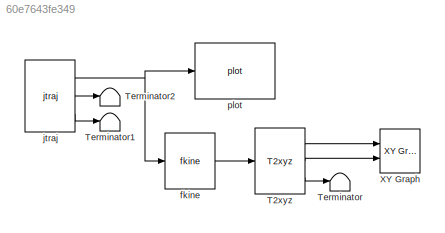
MODEL slx_60e7643fe349
KIND model
CONFIG AbsTol = auto
CONFIG FixedStep = auto
CONFIG InitFcn = if ~exist('p560')\n  mdl_puma560\nend
CONFIG MaxStep = auto
CONFIG MinStep = auto
CONFIG RelTol = 1e-3
CONFIG SampleTimeConstraint = Unconstrained
CONFIG Solver = ode45
CONFIG SolverMode = Auto
CONFIG SolverName = ode45
CONFIG StartTime = 0.0
CONFIG StopTime = 5
BLOCK [Reference] T2xyz  REF=roblocks/Toolbox/T2xyz  (lib defined in mdl_2a292b13c81b, mdl_69400f8cfe22, +12 more)
  Ports = [1, 3]
  SourceBlock = roblocks/Toolbox/T2xyz
BLOCK [Terminator] Terminator
BLOCK [Terminator] Terminator1
BLOCK [Terminator] Terminator2
BLOCK [Reference] XY Graph  REF=simulink/Sinks/XY Graph
  Ports = [2]
  SourceBlock = simulink/Sinks/XY Graph
  SourceType = XY scope.
  st = -1
  xmax = 1
  xmin = -1
  ymax = 1
  ymin = -1
BLOCK [Reference] fkine  REF=roblocks/Arm/fkine  (lib defined in mdl_2a292b13c81b, mdl_69400f8cfe22, +12 more)
  Ports = [1, 1]
  SourceBlock = roblocks/Arm/fkine
  robot = p560
BLOCK [Reference] jtraj  REF=roblocks/Toolbox/jtraj  (lib defined in mdl_2a292b13c81b, mdl_69400f8cfe22, +12 more)
  Ports = [0, 3]
  SourceBlock = roblocks/Toolbox/jtraj
  q0 = [0 0 0 0 0 0]
  qf = [pi/4 pi/2 -pi/2 0 0 0]
  tmax = 5
  ts = 0.02
BLOCK [Reference] plot  REF=roblocks/Arm/plot  (lib defined in mdl_2a292b13c81b, mdl_69400f8cfe22, +12 more)
  Ports = [1]
  SourceBlock = roblocks/Arm/plot
  fps = 25
  holdplot = on
  robot = p560
LINE T2xyz:1 -> XY Graph:1
LINE T2xyz:2 -> XY Graph:2
LINE T2xyz:3 -> Terminator:1
LINE fkine:1 -> T2xyz:1
NET jtraj:1 -> fkine:1, plot:1
LINE jtraj:2 -> Terminator2:1
LINE jtraj:3 -> Terminator1:1
note: NET lines group one-source signal fan-out (src -> all destinations, sorted); 1:1 wires keep LINE
